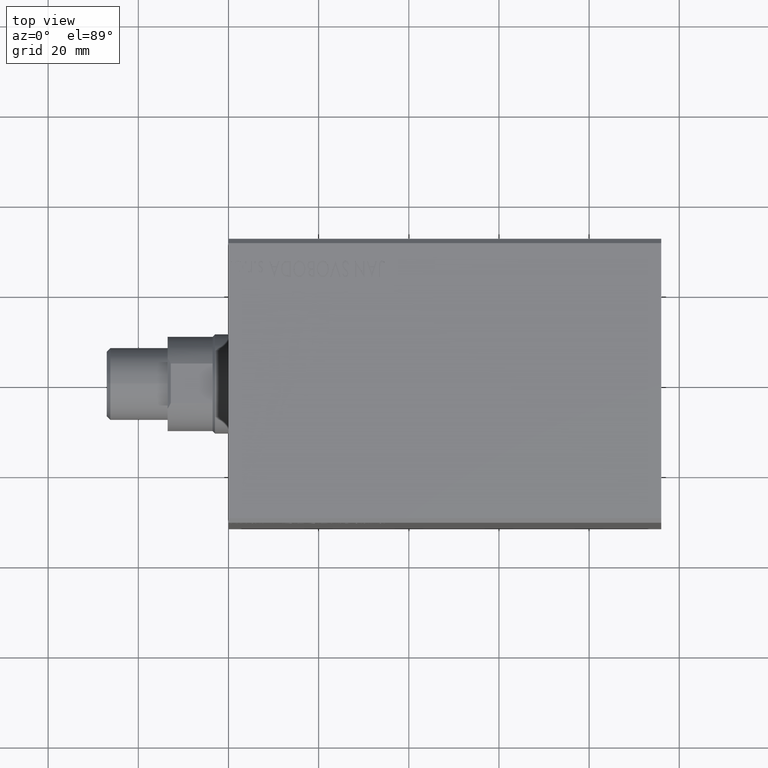
[diagram: clean part render]
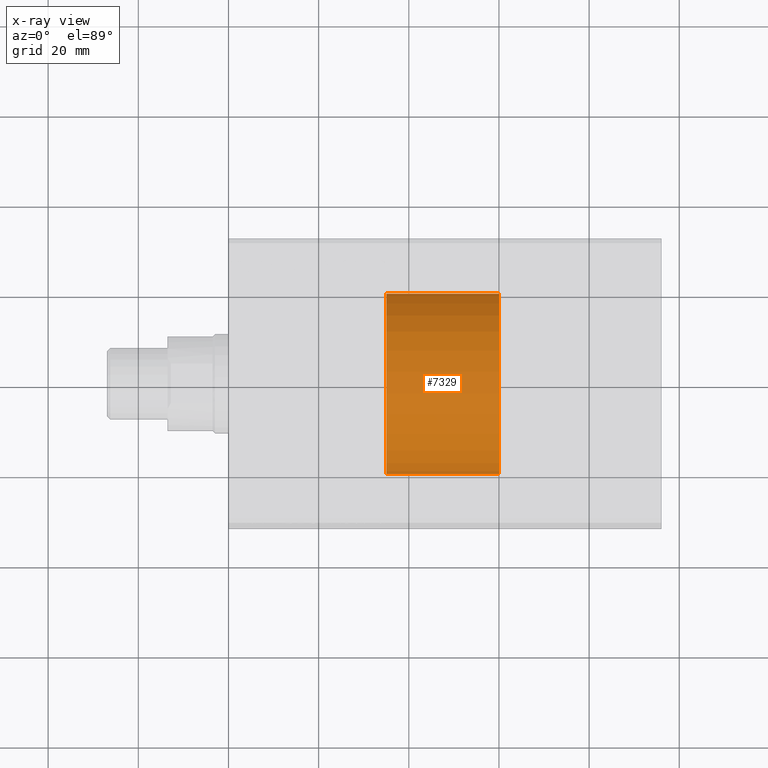
[diagram: x-ray — body ghosted, one internal face saturated and labeled with its STEP entity id]
A machine part, top view, then the same camera in x-ray: the body is ghosted and one INTERNAL B-rep face — a face not visible from any outside direction — is saturated and labeled: STEP entity #7329.
In plain terms, the highlighted cylindrical surface (partial cylindrical patch) has radius 20 mm, axis along (-1, -0, 0).
Its self-contained STEP definition (entity closure, byte-faithful):
#177 = VERTEX_POINT ( 'NONE', #17613 ) ;
#957 = EDGE_CURVE ( 'NONE', #177, #29176, #21417, .T. ) ;
#1608 = FACE_OUTER_BOUND ( 'NONE', #36736, .T. ) ;
#5263 = ORIENTED_EDGE ( 'NONE', *, *, #16884, .F. ) ;
#5463 = VERTEX_POINT ( 'NONE', #25711 ) ;
#6399 = DIRECTION ( 'NONE',  ( 0.000000000000000000, -1.000000000000000000, -1.734723475976807341E-16 ) ) ;
#7329 = ADVANCED_FACE ( 'NONE', ( #1608 ), #15100, .T. ) ;
#8642 = VERTEX_POINT ( 'NONE', #21487 ) ;
#8940 = CARTESIAN_POINT ( 'NONE',  ( 0.000000000000000000, -3.907873496949416796E-15, 25.00000000000000000 ) ) ;
#10099 = LINE ( 'NONE', #10530, #27441 ) ;
#10530 = CARTESIAN_POINT ( 'NONE',  ( 0.000000000000000000, -20.00000000000000711, 73.50000000000001421 ) ) ;
#11068 = DIRECTION ( 'NONE',  ( 0.000000000000000000, -1.000000000000000000, 0.000000000000000000 ) ) ;
#11724 = DIRECTION ( 'NONE',  ( -0.000000000000000000, -1.563149398779766955E-16, 1.000000000000000000 ) ) ;
#11752 = LINE ( 'NONE', #39218, #27599 ) ;
#12925 = DIRECTION ( 'NONE',  ( -0.000000000000000000, -1.563149398779766955E-16, 1.000000000000000000 ) ) ;
#13373 = CARTESIAN_POINT ( 'NONE',  ( 0.000000000000000000, 0.000000000000000000, 0.000000000000000000 ) ) ;
#13804 = DIRECTION ( 'NONE',  ( -0.000000000000000000, -1.563149398779766955E-16, 1.000000000000000000 ) ) ;
#15100 = CYLINDRICAL_SURFACE ( 'NONE', #26508, 19.99999999999999645 ) ;
#16884 = EDGE_CURVE ( 'NONE', #8642, #177, #10099, .T. ) ;
#17613 = CARTESIAN_POINT ( 'NONE',  ( 0.000000000000000000, -20.00000000000000000, 24.99999999999999645 ) ) ;
#20289 = EDGE_CURVE ( 'NONE', #8642, #5463, #39649, .T. ) ;
#21417 = CIRCLE ( 'NONE', #42954, 19.99999999999999645 ) ;
#21487 = CARTESIAN_POINT ( 'NONE',  ( 0.000000000000000000, -20.00000000000000000, -3.126298797559534304E-15 ) ) ;
#25711 = CARTESIAN_POINT ( 'NONE',  ( 2.449293598294706513E-15, 20.00000000000000000, 3.126298797559534304E-15 ) ) ;
#26508 = AXIS2_PLACEMENT_3D ( 'NONE', #28183, #11724, #11068 ) ;
#26551 = CARTESIAN_POINT ( 'NONE',  ( 2.449293598294706119E-15, 19.99999999999999289, 25.00000000000000355 ) ) ;
#26726 = EDGE_CURVE ( 'NONE', #5463, #29176, #11752, .T. ) ;
#27441 = VECTOR ( 'NONE', #34622, 1000.000000000000000 ) ;
#27599 = VECTOR ( 'NONE', #35842, 1000.000000000000000 ) ;
#28183 = CARTESIAN_POINT ( 'NONE',  ( 0.000000000000000000, -1.148914808103128781E-14, 73.50000000000001421 ) ) ;
#29176 = VERTEX_POINT ( 'NONE', #26551 ) ;
#29215 = ORIENTED_EDGE ( 'NONE', *, *, #20289, .T. ) ;
#33421 = DIRECTION ( 'NONE',  ( 0.000000000000000000, -1.000000000000000000, -1.563149398779767201E-16 ) ) ;
#34122 = ORIENTED_EDGE ( 'NONE', *, *, #957, .F. ) ;
#34622 = DIRECTION ( 'NONE',  ( -0.000000000000000000, -1.563149398779766955E-16, 1.000000000000000000 ) ) ;
#34655 = AXIS2_PLACEMENT_3D ( 'NONE', #13373, #12925, #33421 ) ;
#35842 = DIRECTION ( 'NONE',  ( -0.000000000000000000, -1.563149398779766955E-16, 1.000000000000000000 ) ) ;
#36736 = EDGE_LOOP ( 'NONE', ( #29215, #41348, #34122, #5263 ) ) ;
#39218 = CARTESIAN_POINT ( 'NONE',  ( 2.449293598294706119E-15, 19.99999999999998579, 73.50000000000001421 ) ) ;
#39649 = CIRCLE ( 'NONE', #34655, 20.00000000000000000 ) ;
#41348 = ORIENTED_EDGE ( 'NONE', *, *, #26726, .T. ) ;
#42954 = AXIS2_PLACEMENT_3D ( 'NONE', #8940, #13804, #6399 ) ;